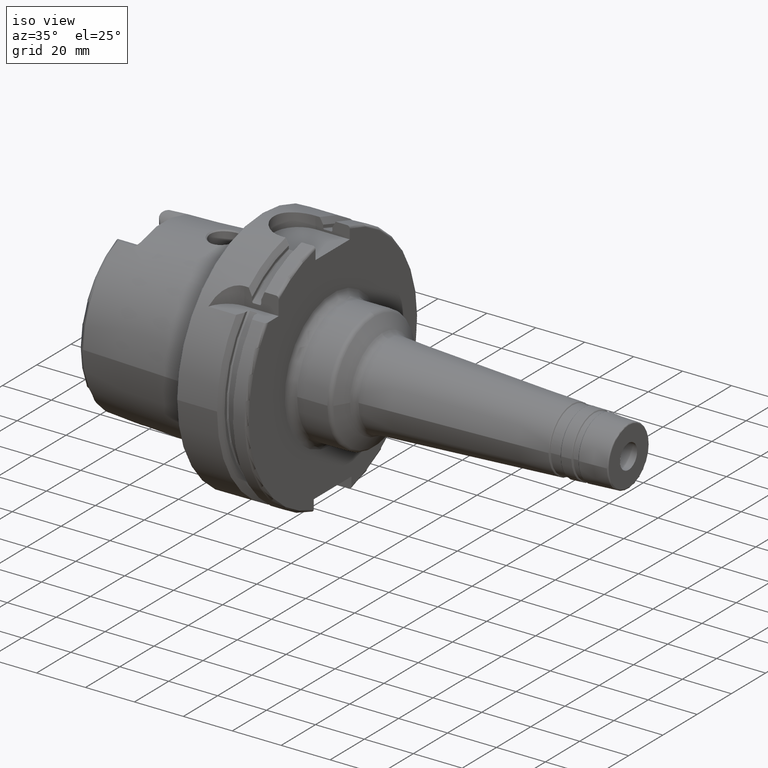
[diagram: clean part render]
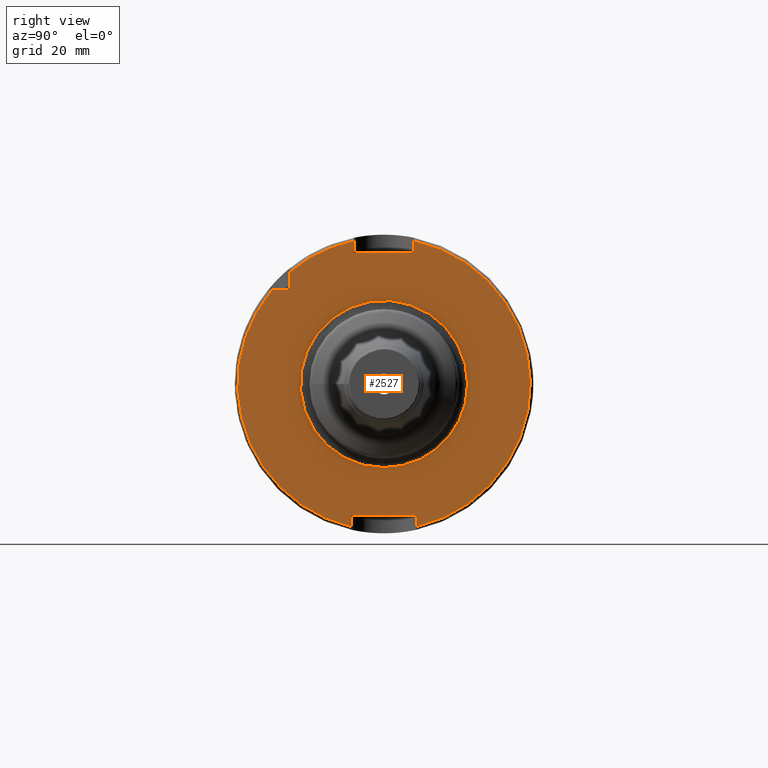
[diagram: tour spotlight — one face highlighted and labeled with its STEP entity id]
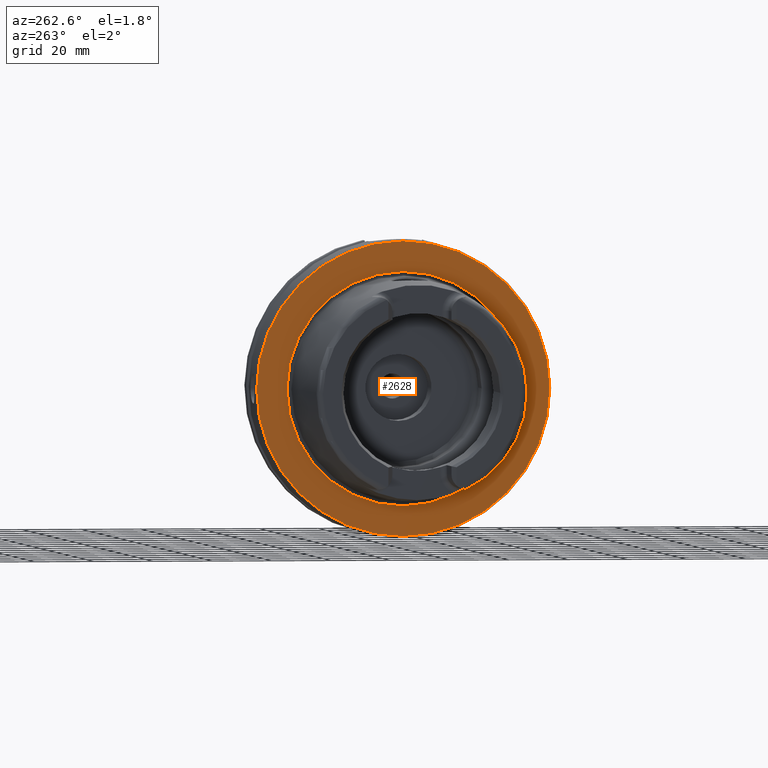
[diagram: tour spotlight — one face highlighted and labeled with its STEP entity id]
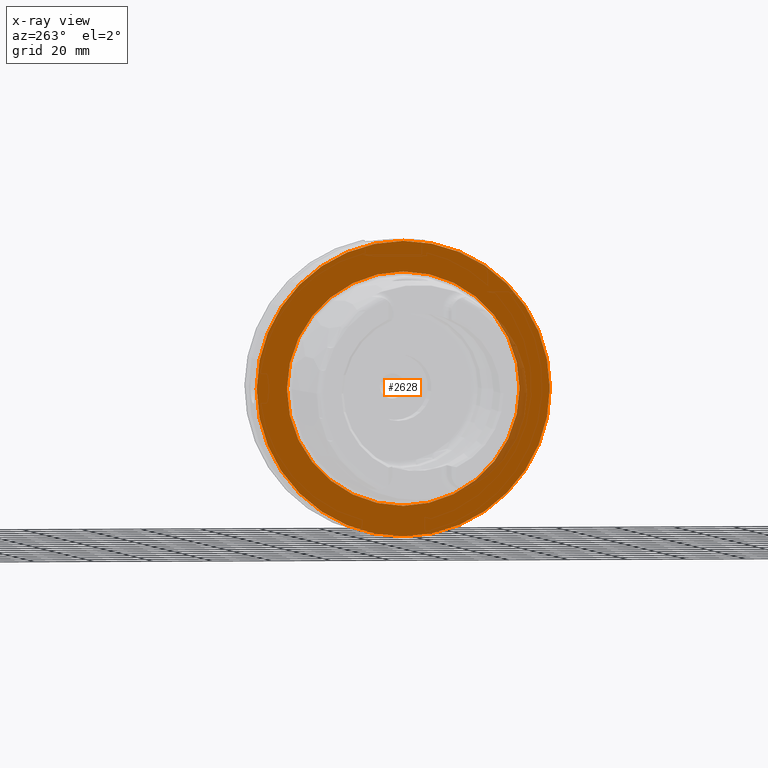
[diagram: x-ray of the same camera — body ghosted, this tour face saturated]
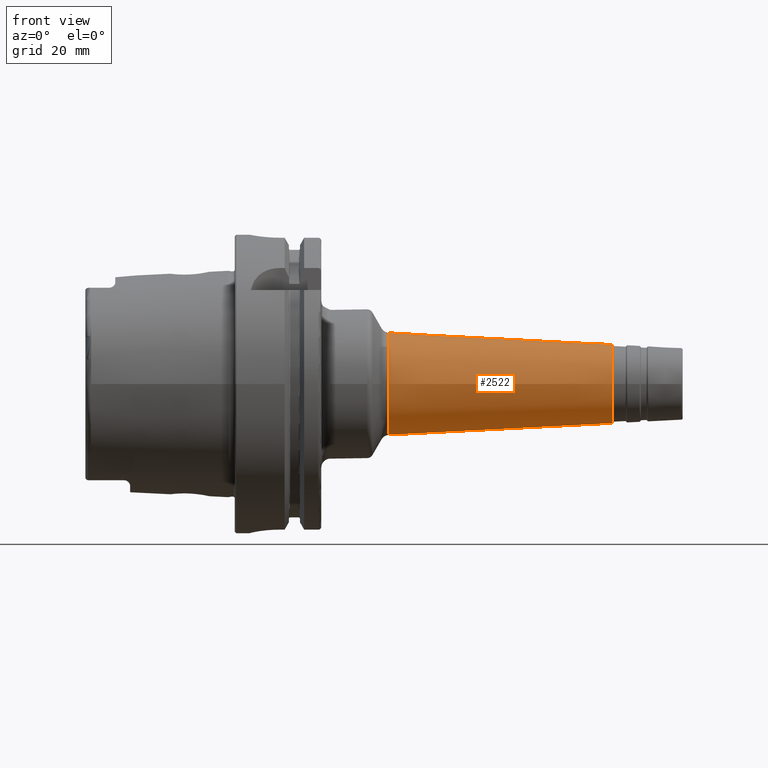
[diagram: tour spotlight — one face highlighted and labeled with its STEP entity id]
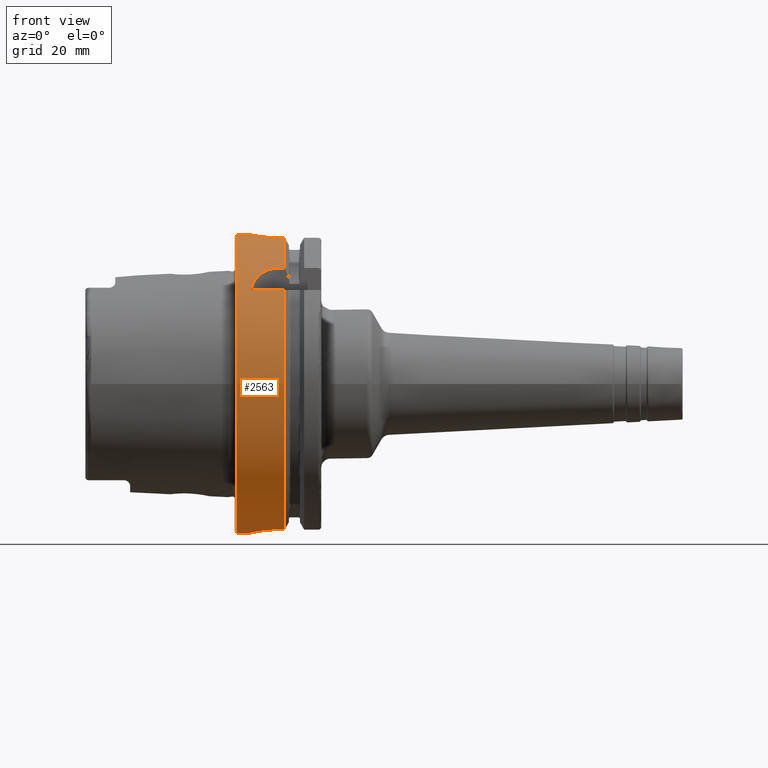
[diagram: tour spotlight — one face highlighted and labeled with its STEP entity id]
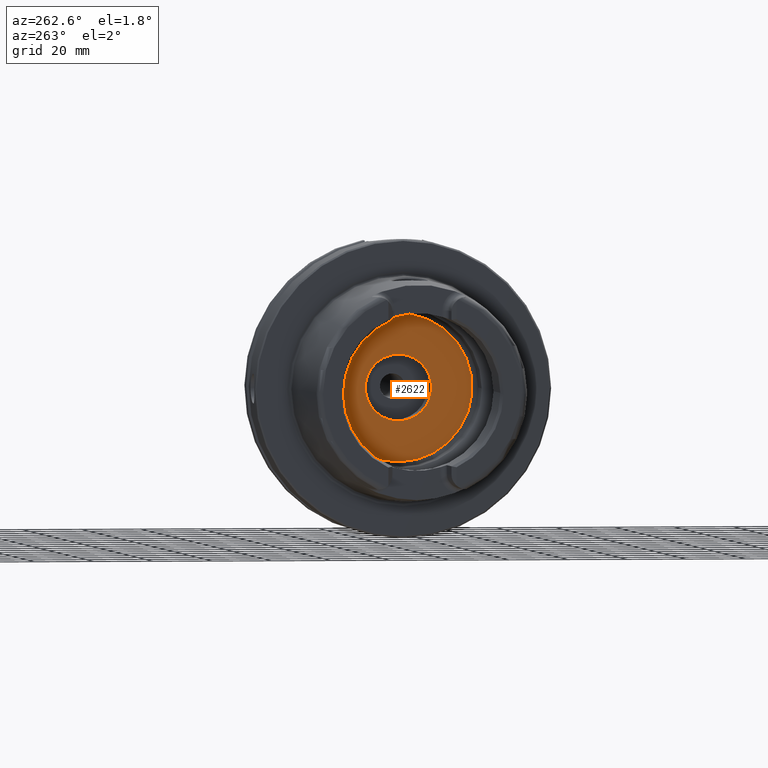
[diagram: tour spotlight — one face highlighted and labeled with its STEP entity id]
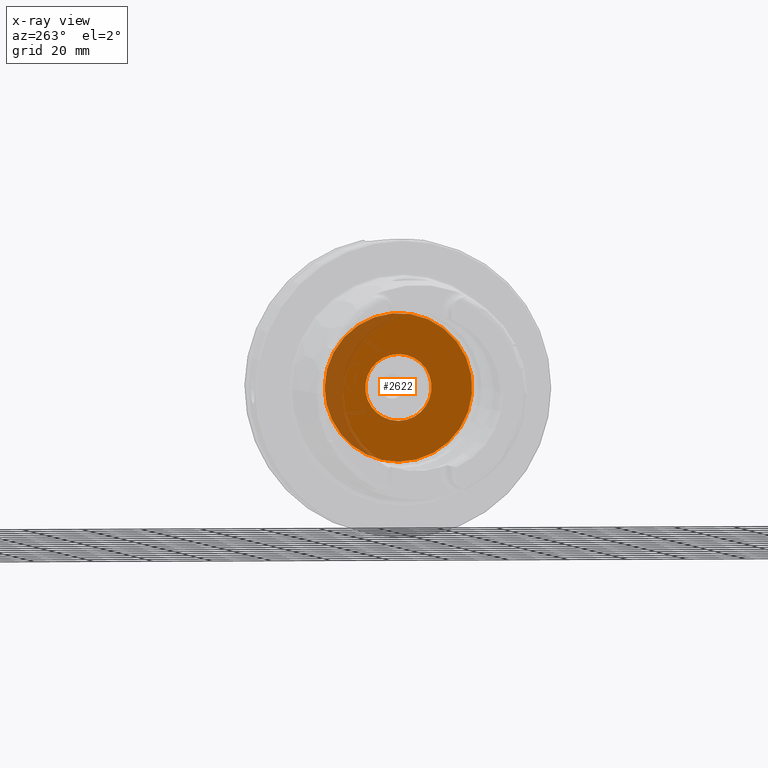
[diagram: x-ray of the same camera — body ghosted, this tour face saturated]
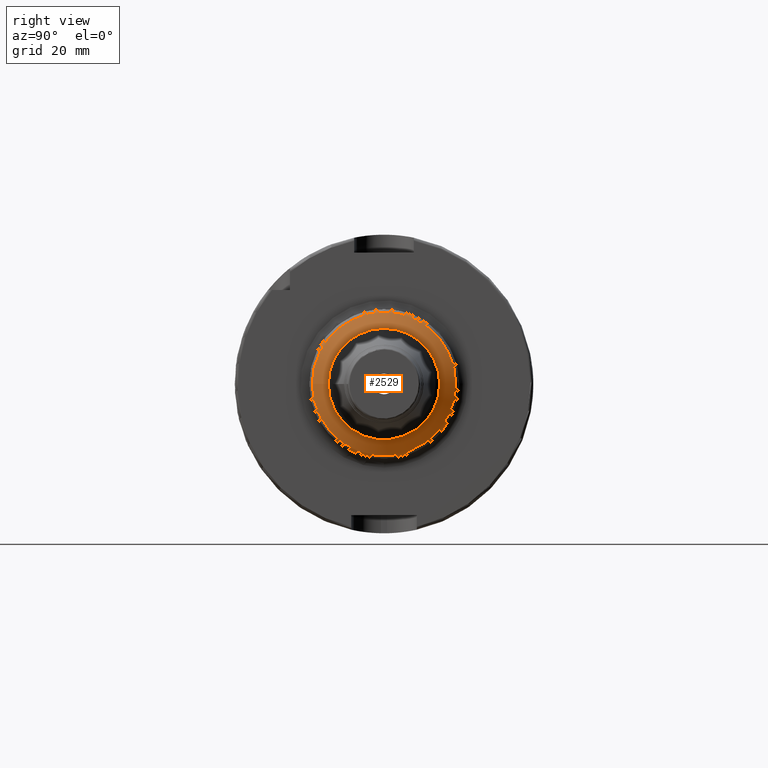
[diagram: tour spotlight — one face highlighted and labeled with its STEP entity id]
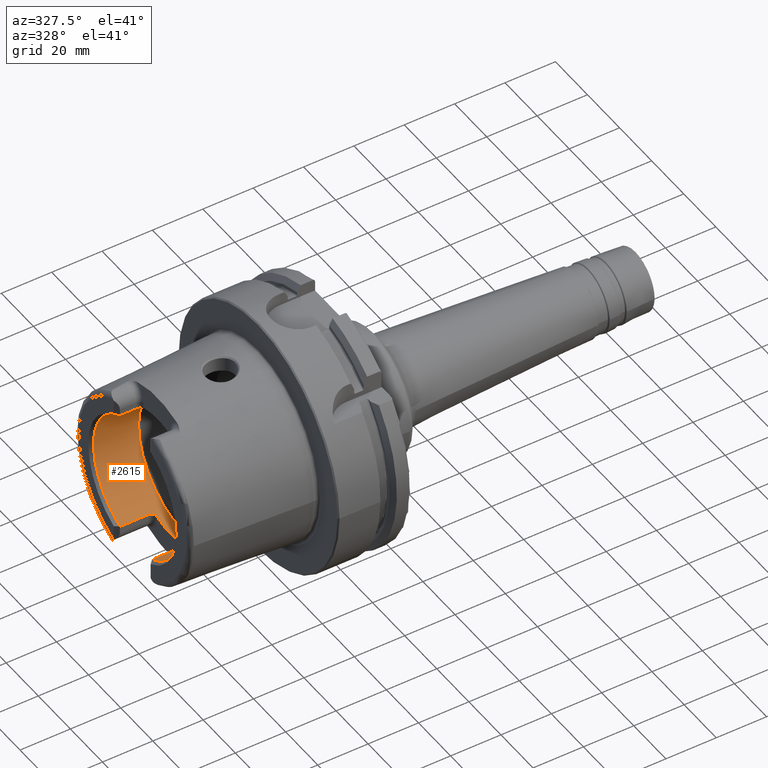
[diagram: tour spotlight — one face highlighted and labeled with its STEP entity id]
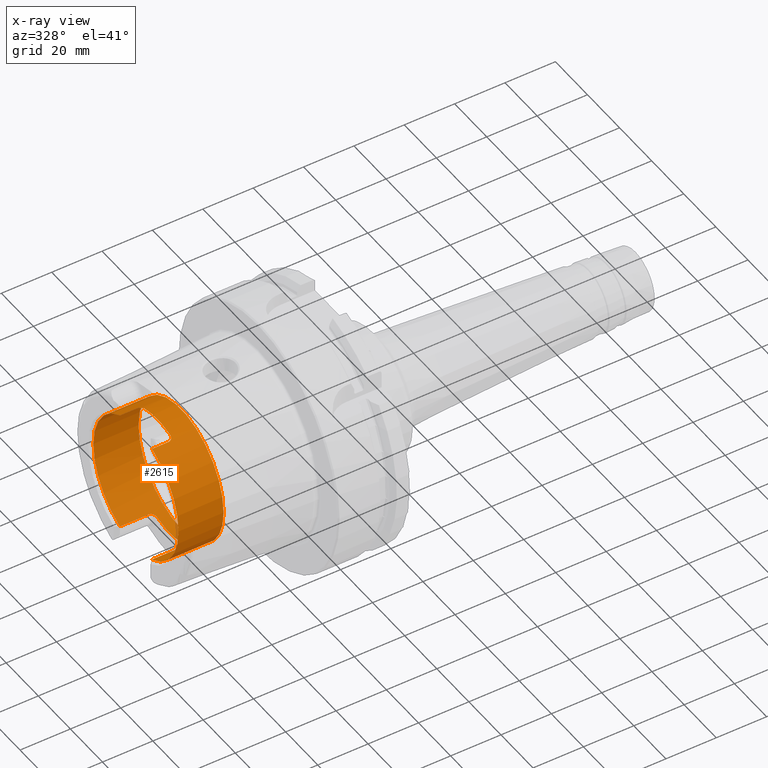
[diagram: x-ray of the same camera — body ghosted, this tour face saturated]
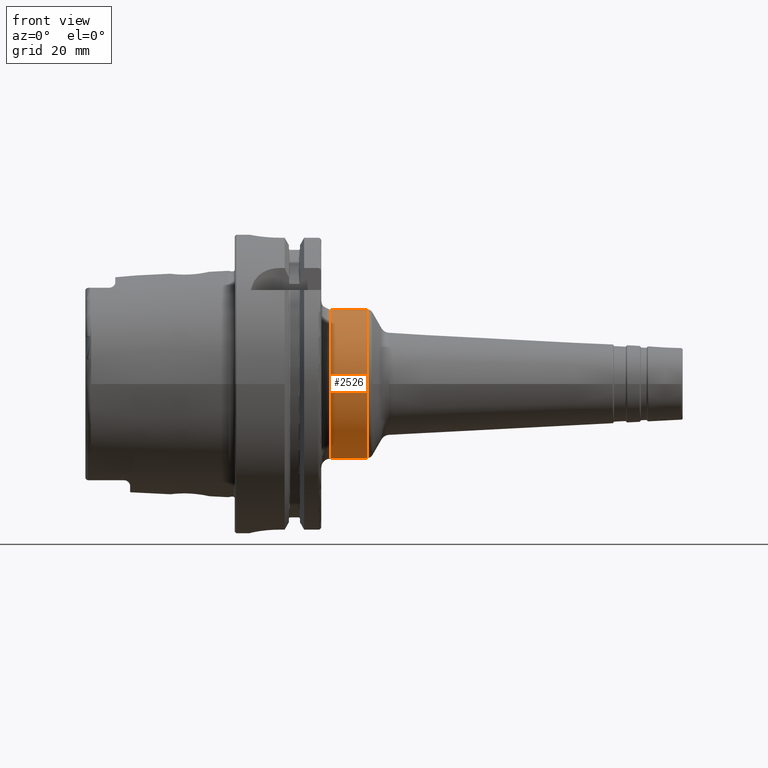
[diagram: tour spotlight — one face highlighted and labeled with its STEP entity id]
A machine part: a face-by-face anatomy tour. The part has 134 B-rep faces; the first image is the clean iso view, then the 8 largest visible faces are spotlighted one at a time (largest first), each with its STEP entity span.

Face 1 — right view, entity #2527. In plain terms, the highlighted planar face has unit normal (1, 0, 0).
Definition (entity closure, byte-faithful):
#129=FACE_BOUND('',#586,.T.);
#140=PLANE('',#2757);
#187=LINE('',#4051,#301);
#188=LINE('',#4055,#302);
#189=LINE('',#4057,#303);
#190=LINE('',#4059,#304);
#191=LINE('',#4063,#305);
#192=LINE('',#4065,#306);
#193=LINE('',#4067,#307);
#194=LINE('',#4070,#308);
#301=VECTOR('',#3234,10.);
#302=VECTOR('',#3237,10.);
#303=VECTOR('',#3238,10.);
#304=VECTOR('',#3239,10.);
#305=VECTOR('',#3242,10.);
#306=VECTOR('',#3243,10.);
#307=VECTOR('',#3244,10.);
#308=VECTOR('',#3247,10.);
#450=FACE_OUTER_BOUND('',#585,.T.);
#585=EDGE_LOOP('',(#1801,#1802,#1803,#1804,#1805,#1806,#1807,#1808,#1809,
#1810,#1811));
#586=EDGE_LOOP('',(#1812,#1813));
#777=CIRCLE('',#2749,28.);
#778=CIRCLE('',#2750,28.);
#784=CIRCLE('',#2758,49.);
#785=CIRCLE('',#2759,49.);
#786=CIRCLE('',#2760,49.);
#994=VERTEX_POINT('',#4032);
#995=VERTEX_POINT('',#4034);
#1000=VERTEX_POINT('',#4049);
#1001=VERTEX_POINT('',#4050);
#1002=VERTEX_POINT('',#4052);
#1003=VERTEX_POINT('',#4054);
#1004=VERTEX_POINT('',#4056);
#1005=VERTEX_POINT('',#4058);
#1006=VERTEX_POINT('',#4060);
#1007=VERTEX_POINT('',#4062);
#1008=VERTEX_POINT('',#4064);
#1009=VERTEX_POINT('',#4066);
#1010=VERTEX_POINT('',#4068);
#1301=EDGE_CURVE('',#994,#995,#777,.T.);
#1302=EDGE_CURVE('',#995,#994,#778,.T.);
#1309=EDGE_CURVE('',#1000,#1001,#187,.T.);
#1310=EDGE_CURVE('',#1001,#1002,#784,.T.);
#1311=EDGE_CURVE('',#1002,#1003,#188,.T.);
#1312=EDGE_CURVE('',#1003,#1004,#189,.T.);
#1313=EDGE_CURVE('',#1004,#1005,#190,.T.);
#1314=EDGE_CURVE('',#1005,#1006,#785,.T.);
#1315=EDGE_CURVE('',#1006,#1007,#191,.T.);
#1316=EDGE_CURVE('',#1007,#1008,#192,.T.);
#1317=EDGE_CURVE('',#1008,#1009,#193,.T.);
#1318=EDGE_CURVE('',#1009,#1010,#786,.T.);
#1319=EDGE_CURVE('',#1010,#1000,#194,.T.);
#1801=ORIENTED_EDGE('',*,*,#1309,.T.);
#1802=ORIENTED_EDGE('',*,*,#1310,.T.);
#1803=ORIENTED_EDGE('',*,*,#1311,.T.);
#1804=ORIENTED_EDGE('',*,*,#1312,.T.);
#1805=ORIENTED_EDGE('',*,*,#1313,.T.);
#1806=ORIENTED_EDGE('',*,*,#1314,.T.);
#1807=ORIENTED_EDGE('',*,*,#1315,.T.);
#1808=ORIENTED_EDGE('',*,*,#1316,.T.);
#1809=ORIENTED_EDGE('',*,*,#1317,.T.);
#1810=ORIENTED_EDGE('',*,*,#1318,.T.);
#1811=ORIENTED_EDGE('',*,*,#1319,.T.);
#1812=ORIENTED_EDGE('',*,*,#1302,.F.);
#1813=ORIENTED_EDGE('',*,*,#1301,.F.);
#2527=ADVANCED_FACE('',(#450,#129),#140,.T.);
#2749=AXIS2_PLACEMENT_3D('',#4035,#3215,#3216);
#2750=AXIS2_PLACEMENT_3D('',#4036,#3217,#3218);
#2757=AXIS2_PLACEMENT_3D('',#4048,#3232,#3233);
#2758=AXIS2_PLACEMENT_3D('',#4053,#3235,#3236);
#2759=AXIS2_PLACEMENT_3D('',#4061,#3240,#3241);
#2760=AXIS2_PLACEMENT_3D('',#4069,#3245,#3246);
#3215=DIRECTION('center_axis',(1.,0.,0.));
#3216=DIRECTION('ref_axis',(0.,-1.,-1.22464679914735E-16));
#3217=DIRECTION('center_axis',(1.,0.,0.));
#3218=DIRECTION('ref_axis',(0.,-1.,-1.22464679914735E-16));
#3232=DIRECTION('center_axis',(1.,0.,0.));
#3233=DIRECTION('ref_axis',(0.,0.,-1.));
#3234=DIRECTION('',(0.,-1.,0.));
#3235=DIRECTION('center_axis',(1.,0.,0.));
#3236=DIRECTION('ref_axis',(0.,0.,-1.));
#3237=DIRECTION('',(0.,0.,1.));
#3238=DIRECTION('',(0.,1.,0.));
#3239=DIRECTION('',(0.,0.,-1.));
#3240=DIRECTION('center_axis',(1.,0.,0.));
#3241=DIRECTION('ref_axis',(0.,0.,-1.));
#3242=DIRECTION('',(0.,0.,-1.));
#3243=DIRECTION('',(0.,-1.,0.));
#3244=DIRECTION('',(0.,0.,1.));
#3245=DIRECTION('center_axis',(1.,0.,0.));
#3246=DIRECTION('ref_axis',(0.,0.,-1.));
#3247=DIRECTION('',(0.,0.,-1.));
#4032=CARTESIAN_POINT('',(29.,-3.42901103761259E-15,-28.));
#4034=CARTESIAN_POINT('',(29.,28.,6.85802207522518E-15));
#4035=CARTESIAN_POINT('Origin',(29.,0.,0.));
#4036=CARTESIAN_POINT('Origin',(29.,0.,0.));
#4048=CARTESIAN_POINT('Origin',(29.,0.,0.));
#4049=CARTESIAN_POINT('',(29.,-31.5,31.5));
#4050=CARTESIAN_POINT('',(29.,-37.5333185316726,31.5));
#4051=CARTESIAN_POINT('',(29.,-18.25,31.5));
#4052=CARTESIAN_POINT('',(29.,-11.,-47.7493455452533));
#4053=CARTESIAN_POINT('Origin',(29.,0.,0.));
#4054=CARTESIAN_POINT('',(29.,-11.,-44.));
#4055=CARTESIAN_POINT('',(29.,-11.,-22.));
#4056=CARTESIAN_POINT('',(29.,11.,-44.));
#4057=CARTESIAN_POINT('',(29.,-5.55111512312578E-16,-44.));
#4058=CARTESIAN_POINT('',(29.,11.,-47.7493455452533));
#4059=CARTESIAN_POINT('',(29.,11.,-22.));
#4060=CARTESIAN_POINT('',(29.,10.,47.9687398208458));
#4061=CARTESIAN_POINT('Origin',(29.,0.,0.));
#4062=CARTESIAN_POINT('',(29.,10.,44.));
#4063=CARTESIAN_POINT('',(29.,10.,22.));
#4064=CARTESIAN_POINT('',(29.,-10.,44.));
#4065=CARTESIAN_POINT('',(29.,0.,44.));
#4066=CARTESIAN_POINT('',(29.,-10.,47.9687398208458));
#4067=CARTESIAN_POINT('',(29.,-10.,22.));
#4068=CARTESIAN_POINT('',(29.,-31.5,37.5333185316726));
#4069=CARTESIAN_POINT('Origin',(29.,0.,0.));
#4070=CARTESIAN_POINT('',(29.,-31.5,15.75));

Face 2 — auxiliary view, entity #2628. An x-ray twin of the same camera follows (body ghosted, this face saturated) — the face is partly hidden behind the body. In plain terms, the highlighted planar face has unit normal (-1, 0, 0).
Definition (entity closure, byte-faithful):
#138=FACE_BOUND('',#696,.T.);
#174=PLANE('',#3000);
#551=FACE_OUTER_BOUND('',#695,.T.);
#695=EDGE_LOOP('',(#2411,#2412));
#696=EDGE_LOOP('',(#2413,#2414));
#917=CIRCLE('',#2997,39.2747800249997);
#918=CIRCLE('',#2998,39.2747800249997);
#920=CIRCLE('',#3001,49.5);
#921=CIRCLE('',#3002,49.5);
#1214=VERTEX_POINT('',#5550);
#1215=VERTEX_POINT('',#5552);
#1216=VERTEX_POINT('',#5557);
#1217=VERTEX_POINT('',#5558);
#1619=EDGE_CURVE('',#1215,#1214,#917,.T.);
#1620=EDGE_CURVE('',#1214,#1215,#918,.T.);
#1622=EDGE_CURVE('',#1216,#1217,#920,.T.);
#1623=EDGE_CURVE('',#1217,#1216,#921,.T.);
#2411=ORIENTED_EDGE('',*,*,#1622,.F.);
#2412=ORIENTED_EDGE('',*,*,#1623,.F.);
#2413=ORIENTED_EDGE('',*,*,#1619,.T.);
#2414=ORIENTED_EDGE('',*,*,#1620,.T.);
#2628=ADVANCED_FACE('',(#551,#138),#174,.T.);
#2997=AXIS2_PLACEMENT_3D('',#5553,#3813,#3814);
#2998=AXIS2_PLACEMENT_3D('',#5554,#3815,#3816);
#3000=AXIS2_PLACEMENT_3D('',#5556,#3819,#3820);
#3001=AXIS2_PLACEMENT_3D('',#5559,#3821,#3822);
#3002=AXIS2_PLACEMENT_3D('',#5560,#3823,#3824);
#3813=DIRECTION('center_axis',(1.,0.,0.));
#3814=DIRECTION('ref_axis',(0.,0.,-1.));
#3815=DIRECTION('center_axis',(1.,0.,0.));
#3816=DIRECTION('ref_axis',(0.,0.,-1.));
#3819=DIRECTION('center_axis',(-1.,0.,0.));
#3820=DIRECTION('ref_axis',(0.,0.,1.));
#3821=DIRECTION('center_axis',(1.,0.,0.));
#3822=DIRECTION('ref_axis',(0.,0.,-1.));
#3823=DIRECTION('center_axis',(1.,0.,0.));
#3824=DIRECTION('ref_axis',(0.,0.,-1.));
#5550=CARTESIAN_POINT('',(-1.04950770296597E-15,-39.2747800249997,-4.80977336448322E-15));
#5552=CARTESIAN_POINT('',(0.,39.2747800249997,0.));
#5553=CARTESIAN_POINT('Origin',(0.,0.,0.));
#5554=CARTESIAN_POINT('Origin',(0.,0.,0.));
#5556=CARTESIAN_POINT('Origin',(0.,49.5,0.));
#5557=CARTESIAN_POINT('',(0.,49.5,0.));
#5558=CARTESIAN_POINT('',(1.28369537222284E-15,-49.5,-6.0620016557794E-15));
#5559=CARTESIAN_POINT('Origin',(0.,0.,0.));
#5560=CARTESIAN_POINT('Origin',(0.,0.,0.));

Face 3 — front view, entity #2522. In plain terms, the highlighted conical surface has half-angle 3 deg.
Definition (entity closure, byte-faithful):
#185=LINE('',#4011,#299);
#299=VECTOR('',#3188,15.2295517409819);
#413=CONICAL_SURFACE('',#2735,15.2295517409819,0.0523598775598298);
#445=FACE_OUTER_BOUND('',#579,.T.);
#579=EDGE_LOOP('',(#1767,#1768,#1769,#1770,#1771,#1772,#1773,#1774));
#764=CIRCLE('',#2732,13.2304120250298);
#765=CIRCLE('',#2733,13.2304120250298);
#766=CIRCLE('',#2734,13.2304120250298);
#767=CIRCLE('',#2736,17.1555296110897);
#768=CIRCLE('',#2737,17.1555296110897);
#769=CIRCLE('',#2738,17.1555296110897);
#982=VERTEX_POINT('',#4002);
#983=VERTEX_POINT('',#4004);
#984=VERTEX_POINT('',#4006);
#985=VERTEX_POINT('',#4010);
#986=VERTEX_POINT('',#4012);
#987=VERTEX_POINT('',#4014);
#1287=EDGE_CURVE('',#982,#983,#764,.T.);
#1288=EDGE_CURVE('',#983,#984,#765,.T.);
#1289=EDGE_CURVE('',#984,#982,#766,.T.);
#1290=EDGE_CURVE('',#983,#985,#185,.T.);
#1291=EDGE_CURVE('',#986,#985,#767,.T.);
#1292=EDGE_CURVE('',#987,#986,#768,.T.);
#1293=EDGE_CURVE('',#985,#987,#769,.T.);
#1767=ORIENTED_EDGE('',*,*,#1289,.F.);
#1768=ORIENTED_EDGE('',*,*,#1288,.F.);
#1769=ORIENTED_EDGE('',*,*,#1290,.T.);
#1770=ORIENTED_EDGE('',*,*,#1291,.F.);
#1771=ORIENTED_EDGE('',*,*,#1292,.F.);
#1772=ORIENTED_EDGE('',*,*,#1293,.F.);
#1773=ORIENTED_EDGE('',*,*,#1290,.F.);
#1774=ORIENTED_EDGE('',*,*,#1287,.F.);
#2522=ADVANCED_FACE('',(#445),#413,.T.);
#2732=AXIS2_PLACEMENT_3D('',#4005,#3180,#3181);
#2733=AXIS2_PLACEMENT_3D('',#4007,#3182,#3183);
#2734=AXIS2_PLACEMENT_3D('',#4008,#3184,#3185);
#2735=AXIS2_PLACEMENT_3D('',#4009,#3186,#3187);
#2736=AXIS2_PLACEMENT_3D('',#4013,#3189,#3190);
#2737=AXIS2_PLACEMENT_3D('',#4015,#3191,#3192);
#2738=AXIS2_PLACEMENT_3D('',#4016,#3193,#3194);
#3180=DIRECTION('center_axis',(1.,0.,0.));
#3181=DIRECTION('ref_axis',(0.,-1.,3.06161699786838E-17));
#3182=DIRECTION('center_axis',(1.,0.,0.));
#3183=DIRECTION('ref_axis',(0.,-1.,3.06161699786838E-17));
#3184=DIRECTION('center_axis',(1.,0.,0.));
#3185=DIRECTION('ref_axis',(0.,-1.,3.06161699786838E-17));
#3186=DIRECTION('center_axis',(-1.,0.,0.));
#3187=DIRECTION('ref_axis',(0.,1.,0.));
#3188=DIRECTION('',(-0.998629534754574,-0.0523359562429437,-6.4093061293237E-18));
#3189=DIRECTION('center_axis',(-1.,0.,0.));
#3190=DIRECTION('ref_axis',(0.,-1.,3.06161699786838E-17));
#3191=DIRECTION('center_axis',(-1.,0.,0.));
#3192=DIRECTION('ref_axis',(0.,-1.,3.06161699786838E-17));
#3193=DIRECTION('center_axis',(-1.,0.,0.));
#3194=DIRECTION('ref_axis',(0.,-1.,3.06161699786838E-17));
#4002=CARTESIAN_POINT('',(126.522339968181,-1.62025817378534E-15,13.2304120250298));
#4004=CARTESIAN_POINT('',(126.522339968181,-13.2304120250298,-1.62025817378535E-15));
#4005=CARTESIAN_POINT('Origin',(126.522339968181,0.,-2.02532271723168E-15));
#4006=CARTESIAN_POINT('',(126.522339968181,13.2304120250298,-8.10129086892673E-16));
#4007=CARTESIAN_POINT('Origin',(126.522339968181,0.,-2.02532271723168E-15));
#4008=CARTESIAN_POINT('Origin',(126.522339968181,0.,-2.02532271723168E-15));
#4009=CARTESIAN_POINT('Origin',(88.3764817902327,0.,0.));
#4010=CARTESIAN_POINT('',(51.6266347931668,-17.1555296110897,-2.10094644258986E-15));
#4011=CARTESIAN_POINT('',(88.3764817902327,-15.2295517409819,-1.86508217920425E-15));
#4012=CARTESIAN_POINT('',(51.6266347931668,17.1555296110897,-5.25236610647466E-15));
#4013=CARTESIAN_POINT('Origin',(51.6266347931668,0.,-2.62618305323733E-15));
#4014=CARTESIAN_POINT('',(51.6266347931668,-2.10094644258986E-15,17.1555296110897));
#4015=CARTESIAN_POINT('Origin',(51.6266347931668,0.,-2.62618305323733E-15));
#4016=CARTESIAN_POINT('Origin',(51.6266347931668,0.,-2.62618305323733E-15));

Face 4 — front view, entity #2563. In plain terms, the highlighted cylindrical surface (bore or boss wall) has radius 50 mm, axis along (1, 0, 0).
Definition (entity closure, byte-faithful):
#56=B_SPLINE_CURVE_WITH_KNOTS('',3,(#4887,#4888,#4889,#4890,#4891,#4892,
#4893,#4894,#4895,#4896,#4897,#4898,#4899,#4900,#4901,#4902,#4903,#4904,
#4905,#4906,#4907,#4908,#4909,#4910,#4911,#4912),.UNSPECIFIED.,.F.,.F.,
(4,2,2,2,2,2,2,2,2,2,2,2,4),(0.,0.188478911015149,0.376957822030298,0.565436091508923,
0.753914360987547,0.942392630466172,1.1308708999448,1.31934981095995,1.50782872197509,
1.69630763299024,1.88478654400539,2.07326481348402,2.26174308296264),
 .UNSPECIFIED.);
#57=B_SPLINE_CURVE_WITH_KNOTS('',3,(#4913,#4914,#4915,#4916,#4917,#4918,
#4919,#4920,#4921,#4922),.UNSPECIFIED.,.F.,.F.,(4,2,2,2,4),(2.26174308296264,
2.45022135244127,2.63869962191989,2.82717853293504,3.01565744395019),
 .UNSPECIFIED.);
#58=B_SPLINE_CURVE_WITH_KNOTS('',3,(#4926,#4927,#4928,#4929,#4930,#4931,
#4932,#4933,#4934,#4935,#4936,#4937),.UNSPECIFIED.,.F.,.F.,(4,2,2,2,2,4),
(1.13213255574021,1.59216410027009,1.87572541272146,2.15928672517283,2.38471683342296,
2.61014694167308),.UNSPECIFIED.);
#65=B_SPLINE_CURVE_WITH_KNOTS('',3,(#5050,#5051,#5052,#5053,#5054,#5055,
#5056,#5057,#5058,#5059,#5060,#5061,#5062,#5063,#5064,#5065,#5066,#5067),
 .UNSPECIFIED.,.F.,.F.,(4,2,2,2,2,2,2,2,4),(0.,0.377795255890194,0.755590511780389,
1.13336459804459,1.51113868430879,1.88891277057299,2.26668685683718,2.64448211272738,
3.02227736861757),.UNSPECIFIED.);
#66=B_SPLINE_CURVE_WITH_KNOTS('',3,(#5075,#5076,#5077,#5078,#5079,#5080,
#5081,#5082,#5083,#5084),.UNSPECIFIED.,.F.,.F.,(4,2,2,2,4),(0.,0.377863193874929,
0.755726387749858,1.13417752669663,1.51262866564341),.UNSPECIFIED.);
#67=B_SPLINE_CURVE_WITH_KNOTS('',3,(#5088,#5089,#5090,#5091,#5092,#5093,
#5094,#5095,#5096,#5097),.UNSPECIFIED.,.F.,.F.,(4,2,2,2,4),(1.50996806152532,
1.8884192004721,2.26687033941887,2.6447335332938,3.02259672716873),
 .UNSPECIFIED.);
#106=CYLINDRICAL_SURFACE('',#2859,50.);
#134=FACE_BOUND('',#627,.T.);
#229=LINE('',#4943,#343);
#235=LINE('',#4995,#349);
#240=LINE('',#5048,#354);
#241=LINE('',#5069,#355);
#242=LINE('',#5073,#356);
#243=LINE('',#5099,#357);
#244=LINE('',#5103,#358);
#343=VECTOR('',#3476,10.);
#349=VECTOR('',#3484,10.);
#354=VECTOR('',#3493,10.);
#355=VECTOR('',#3494,10.);
#356=VECTOR('',#3497,10.);
#357=VECTOR('',#3500,10.);
#358=VECTOR('',#3503,50.);
#486=FACE_OUTER_BOUND('',#626,.T.);
#626=EDGE_LOOP('',(#2052,#2053,#2054,#2055,#2056,#2057,#2058,#2059,#2060,
#2061,#2062,#2063,#2064,#2065,#2066,#2067,#2068,#2069,#2070));
#627=EDGE_LOOP('',(#2071,#2072));
#844=CIRCLE('',#2860,50.);
#845=CIRCLE('',#2861,50.);
#846=CIRCLE('',#2862,50.);
#847=CIRCLE('',#2863,50.);
#848=CIRCLE('',#2864,50.);
#849=CIRCLE('',#2865,50.);
#850=CIRCLE('',#2866,50.);
#1104=VERTEX_POINT('',#4884);
#1105=VERTEX_POINT('',#4886);
#1106=VERTEX_POINT('',#4924);
#1107=VERTEX_POINT('',#4925);
#1109=VERTEX_POINT('',#4942);
#1118=VERTEX_POINT('',#4994);
#1127=VERTEX_POINT('',#5045);
#1128=VERTEX_POINT('',#5047);
#1129=VERTEX_POINT('',#5049);
#1130=VERTEX_POINT('',#5068);
#1131=VERTEX_POINT('',#5070);
#1132=VERTEX_POINT('',#5072);
#1133=VERTEX_POINT('',#5074);
#1134=VERTEX_POINT('',#5085);
#1135=VERTEX_POINT('',#5087);
#1136=VERTEX_POINT('',#5098);
#1137=VERTEX_POINT('',#5100);
#1138=VERTEX_POINT('',#5102);
#1139=VERTEX_POINT('',#5104);
#1444=EDGE_CURVE('',#1105,#1104,#56,.T.);
#1445=EDGE_CURVE('',#1104,#1105,#57,.T.);
#1446=EDGE_CURVE('',#1106,#1107,#58,.T.);
#1449=EDGE_CURVE('',#1107,#1109,#229,.T.);
#1460=EDGE_CURVE('',#1118,#1106,#235,.T.);
#1470=EDGE_CURVE('',#1127,#1109,#844,.T.);
#1471=EDGE_CURVE('',#1127,#1128,#240,.T.);
#1472=EDGE_CURVE('',#1128,#1129,#65,.T.);
#1473=EDGE_CURVE('',#1129,#1130,#241,.T.);
#1474=EDGE_CURVE('',#1131,#1130,#845,.T.);
#1475=EDGE_CURVE('',#1131,#1132,#242,.T.);
#1476=EDGE_CURVE('',#1132,#1133,#66,.T.);
#1477=EDGE_CURVE('',#1133,#1134,#846,.T.);
#1478=EDGE_CURVE('',#1134,#1135,#67,.T.);
#1479=EDGE_CURVE('',#1135,#1136,#243,.T.);
#1480=EDGE_CURVE('',#1137,#1136,#847,.T.);
#1481=EDGE_CURVE('',#1137,#1138,#244,.T.);
#1482=EDGE_CURVE('',#1138,#1139,#848,.T.);
#1483=EDGE_CURVE('',#1139,#1138,#849,.T.);
#1484=EDGE_CURVE('',#1118,#1137,#850,.T.);
#2052=ORIENTED_EDGE('',*,*,#1460,.T.);
#2053=ORIENTED_EDGE('',*,*,#1446,.T.);
#2054=ORIENTED_EDGE('',*,*,#1449,.T.);
#2055=ORIENTED_EDGE('',*,*,#1470,.F.);
#2056=ORIENTED_EDGE('',*,*,#1471,.T.);
#2057=ORIENTED_EDGE('',*,*,#1472,.T.);
#2058=ORIENTED_EDGE('',*,*,#1473,.T.);
#2059=ORIENTED_EDGE('',*,*,#1474,.F.);
#2060=ORIENTED_EDGE('',*,*,#1475,.T.);
#2061=ORIENTED_EDGE('',*,*,#1476,.T.);
#2062=ORIENTED_EDGE('',*,*,#1477,.T.);
#2063=ORIENTED_EDGE('',*,*,#1478,.T.);
#2064=ORIENTED_EDGE('',*,*,#1479,.T.);
#2065=ORIENTED_EDGE('',*,*,#1480,.F.);
#2066=ORIENTED_EDGE('',*,*,#1481,.T.);
#2067=ORIENTED_EDGE('',*,*,#1482,.T.);
#2068=ORIENTED_EDGE('',*,*,#1483,.T.);
#2069=ORIENTED_EDGE('',*,*,#1481,.F.);
#2070=ORIENTED_EDGE('',*,*,#1484,.F.);
#2071=ORIENTED_EDGE('',*,*,#1444,.T.);
#2072=ORIENTED_EDGE('',*,*,#1445,.T.);
#2563=ADVANCED_FACE('',(#486,#134),#106,.T.);
#2859=AXIS2_PLACEMENT_3D('',#5044,#3489,#3490);
#2860=AXIS2_PLACEMENT_3D('',#5046,#3491,#3492);
#2861=AXIS2_PLACEMENT_3D('',#5071,#3495,#3496);
#2862=AXIS2_PLACEMENT_3D('',#5086,#3498,#3499);
#2863=AXIS2_PLACEMENT_3D('',#5101,#3501,#3502);
#2864=AXIS2_PLACEMENT_3D('',#5105,#3504,#3505);
#2865=AXIS2_PLACEMENT_3D('',#5106,#3506,#3507);
#2866=AXIS2_PLACEMENT_3D('',#5107,#3508,#3509);
#3476=DIRECTION('',(1.,0.,0.));
#3484=DIRECTION('',(-1.,0.,0.));
#3489=DIRECTION('center_axis',(1.,0.,0.));
#3490=DIRECTION('ref_axis',(0.,1.,0.));
#3491=DIRECTION('center_axis',(1.,0.,0.));
#3492=DIRECTION('ref_axis',(0.,0.,-1.));
#3493=DIRECTION('',(-1.,0.,0.));
#3494=DIRECTION('',(1.,0.,0.));
#3495=DIRECTION('center_axis',(1.,0.,0.));
#3496=DIRECTION('ref_axis',(0.,0.,-1.));
#3497=DIRECTION('',(-1.,0.,0.));
#3498=DIRECTION('center_axis',(-1.,0.,0.));
#3499=DIRECTION('ref_axis',(0.,1.,0.));
#3500=DIRECTION('',(1.,0.,0.));
#3501=DIRECTION('center_axis',(1.,0.,0.));
#3502=DIRECTION('ref_axis',(0.,0.,-1.));
#3503=DIRECTION('',(-1.,0.,0.));
#3504=DIRECTION('center_axis',(1.,0.,0.));
#3505=DIRECTION('ref_axis',(0.,0.,-1.));
#3506=DIRECTION('center_axis',(1.,0.,0.));
#3507=DIRECTION('ref_axis',(0.,0.,-1.));
#3508=DIRECTION('center_axis',(1.,0.,0.));
#3509=DIRECTION('ref_axis',(0.,0.,-1.));
#4884=CARTESIAN_POINT('',(12.,50.,-6.12323399573677E-16));
#4886=CARTESIAN_POINT('',(6.99999999999999,49.749371855331,5.));
#4887=CARTESIAN_POINT('Ctrl Pts',(6.99999999999999,49.749371855331,5.));
#4888=CARTESIAN_POINT('Ctrl Pts',(6.37173696328283,49.749371855331,5.));
#4889=CARTESIAN_POINT('Ctrl Pts',(5.70188570880885,49.7624993987098,4.87435544587055));
#4890=CARTESIAN_POINT('Ctrl Pts',(4.4701142477173,49.8098541153698,4.36395693611591));
#4891=CARTESIAN_POINT('Ctrl Pts',(3.90815809537484,49.8433908660961,3.97922590724033));
#4892=CARTESIAN_POINT('Ctrl Pts',(3.02077560297968,49.9062957431473,3.09184341484517));
#4893=CARTESIAN_POINT('Ctrl Pts',(2.63604339567929,49.9397591808605,2.52988660036719));
#4894=CARTESIAN_POINT('Ctrl Pts',(2.12564400622109,49.9869460568296,1.29811292154946));
#4895=CARTESIAN_POINT('Ctrl Pts',(1.99999999999999,50.,0.628260898262081));
#4896=CARTESIAN_POINT('Ctrl Pts',(1.99999999999999,50.,-0.628260898262082));
#4897=CARTESIAN_POINT('Ctrl Pts',(2.12564400622109,49.9869460568296,-1.29811292154946));
#4898=CARTESIAN_POINT('Ctrl Pts',(2.63604339567929,49.9397591808605,-2.52988660036719));
#4899=CARTESIAN_POINT('Ctrl Pts',(3.02077560297968,49.9062957431473,-3.09184341484517));
#4900=CARTESIAN_POINT('Ctrl Pts',(3.90815809537484,49.8433908660961,-3.97922590724033));
#4901=CARTESIAN_POINT('Ctrl Pts',(4.4701142477173,49.8098541153698,-4.36395693611591));
#4902=CARTESIAN_POINT('Ctrl Pts',(5.70188570880885,49.7624993987098,-4.87435544587055));
#4903=CARTESIAN_POINT('Ctrl Pts',(6.37173696328283,49.749371855331,-5.));
#4904=CARTESIAN_POINT('Ctrl Pts',(7.62826303671716,49.749371855331,-5.));
#4905=CARTESIAN_POINT('Ctrl Pts',(8.29811429119113,49.7624993987098,-4.87435544587055));
#4906=CARTESIAN_POINT('Ctrl Pts',(9.52988575228269,49.8098541153698,-4.36395693611591));
#4907=CARTESIAN_POINT('Ctrl Pts',(10.0918419046251,49.8433908660961,-3.97922590724033));
#4908=CARTESIAN_POINT('Ctrl Pts',(10.9792243970203,49.9062957431473,-3.09184341484517));
#4909=CARTESIAN_POINT('Ctrl Pts',(11.3639566043207,49.9397591808605,-2.52988660036719));
#4910=CARTESIAN_POINT('Ctrl Pts',(11.8743559937789,49.9869460568296,-1.29811292154947));
#4911=CARTESIAN_POINT('Ctrl Pts',(12.,50.,-0.628260898262083));
#4912=CARTESIAN_POINT('Ctrl Pts',(12.,50.,-5.55111512312578E-16));
#4913=CARTESIAN_POINT('Ctrl Pts',(12.,50.,-5.55111512312578E-16));
#4914=CARTESIAN_POINT('Ctrl Pts',(12.,50.,0.628260898262082));
#4915=CARTESIAN_POINT('Ctrl Pts',(11.8743559937789,49.9869460568296,1.29811292154946));
#4916=CARTESIAN_POINT('Ctrl Pts',(11.3639566043207,49.9397591808605,2.52988660036719));
#4917=CARTESIAN_POINT('Ctrl Pts',(10.9792243970203,49.9062957431473,3.09184341484517));
#4918=CARTESIAN_POINT('Ctrl Pts',(10.0918419046251,49.8433908660961,3.97922590724033));
#4919=CARTESIAN_POINT('Ctrl Pts',(9.52988575228269,49.8098541153698,4.36395693611591));
#4920=CARTESIAN_POINT('Ctrl Pts',(8.29811429119113,49.7624993987098,4.87435544587055));
#4921=CARTESIAN_POINT('Ctrl Pts',(7.62826303671716,49.749371855331,5.));
#4922=CARTESIAN_POINT('Ctrl Pts',(6.99999999999999,49.749371855331,5.));
#4924=CARTESIAN_POINT('',(5.36310214079494,-38.8297566307078,31.5));
#4925=CARTESIAN_POINT('',(15.,-31.5,38.8297566307078));
#4926=CARTESIAN_POINT('Ctrl Pts',(5.36310214079494,-38.8297566307078,31.5));
#4927=CARTESIAN_POINT('Ctrl Pts',(5.63795050776221,-37.8378299510303,32.722738779917));
#4928=CARTESIAN_POINT('Ctrl Pts',(6.08245260240086,-36.8264130955983,33.8486741193789));
#4929=CARTESIAN_POINT('Ctrl Pts',(7.14730321206235,-35.2667182945212,35.4540138707062));
#4930=CARTESIAN_POINT('Ctrl Pts',(7.68113760815893,-34.6306580359392,36.0741351437033));
#4931=CARTESIAN_POINT('Ctrl Pts',(8.97436758466638,-33.4722127660808,37.1515365058173));
#4932=CARTESIAN_POINT('Ctrl Pts',(9.73574998094174,-32.9521170857844,37.6088911783762));
#4933=CARTESIAN_POINT('Ctrl Pts',(11.1521999725134,-32.2432973482077,38.2170233500259));
#4934=CARTESIAN_POINT('Ctrl Pts',(11.8888981504148,-31.9629772872452,38.4503075998006));
#4935=CARTESIAN_POINT('Ctrl Pts',(13.4369856471743,-31.5908755949743,38.7566077888176));
#4936=CARTESIAN_POINT('Ctrl Pts',(14.2485663058329,-31.5,38.8297566307078));
#4937=CARTESIAN_POINT('Ctrl Pts',(15.,-31.5,38.8297566307078));
#4942=CARTESIAN_POINT('',(16.7379709790786,-31.5,38.8297566307078));
#4943=CARTESIAN_POINT('',(8.61898548953931,-31.5,38.8297566307078));
#4994=CARTESIAN_POINT('',(16.7379709790786,-38.8297566307078,31.5));
#4995=CARTESIAN_POINT('',(8.61898548953931,-38.8297566307078,31.5));
#5044=CARTESIAN_POINT('Origin',(8.61898548953931,0.,0.));
#5045=CARTESIAN_POINT('',(16.7379709790786,-10.,48.9897948556636));
#5046=CARTESIAN_POINT('Origin',(16.7379709790786,0.,0.));
#5047=CARTESIAN_POINT('',(15.,-10.,48.9897948556636));
#5048=CARTESIAN_POINT('',(8.61898548953931,-10.,48.9897948556636));
#5049=CARTESIAN_POINT('',(15.,10.,48.9897948556636));
#5050=CARTESIAN_POINT('Ctrl Pts',(15.,-10.,48.9897948556636));
#5051=CARTESIAN_POINT('Ctrl Pts',(13.740682480366,-10.,48.9897948556636));
#5052=CARTESIAN_POINT('Ctrl Pts',(12.3998222283811,-9.74762796248614,49.0433876618447));
#5053=CARTESIAN_POINT('Ctrl Pts',(9.93707994969945,-8.72605417648382,49.2354150792771));
#5054=CARTESIAN_POINT('Ctrl Pts',(8.81489539818993,-7.95703102192089,49.3709085101933));
#5055=CARTESIAN_POINT('Ctrl Pts',(7.04301862271998,-6.18515424645094,49.6240337638318));
#5056=CARTESIAN_POINT('Ctrl Pts',(6.27395658455242,-5.06294861197626,49.7583347151863));
#5057=CARTESIAN_POINT('Ctrl Pts',(5.25235457764165,-2.60013306081865,49.9476188647081));
#5058=CARTESIAN_POINT('Ctrl Pts',(4.99999999999999,-1.259246954214,50.));
#5059=CARTESIAN_POINT('Ctrl Pts',(4.99999999999999,1.259246954214,50.));
#5060=CARTESIAN_POINT('Ctrl Pts',(5.25235457764165,2.60013306081865,49.9476188647081));
#5061=CARTESIAN_POINT('Ctrl Pts',(6.27395658455242,5.06294861197626,49.7583347151863));
#5062=CARTESIAN_POINT('Ctrl Pts',(7.04301862271998,6.18515424645094,49.6240337638318));
#5063=CARTESIAN_POINT('Ctrl Pts',(8.81489539818993,7.95703102192089,49.3709085101933));
#5064=CARTESIAN_POINT('Ctrl Pts',(9.93707994969945,8.72605417648382,49.2354150792771));
#5065=CARTESIAN_POINT('Ctrl Pts',(12.3998222283811,9.74762796248614,49.0433876618447));
#5066=CARTESIAN_POINT('Ctrl Pts',(13.740682480366,10.,48.9897948556636));
#5067=CARTESIAN_POINT('Ctrl Pts',(15.,10.,48.9897948556636));
#5068=CARTESIAN_POINT('',(16.7379709790786,10.,48.9897948556636));
#5069=CARTESIAN_POINT('',(8.61898548953931,10.,48.9897948556636));
#5070=CARTESIAN_POINT('',(16.7379709790786,11.,-48.7749935930288));
#5071=CARTESIAN_POINT('Origin',(16.7379709790786,0.,0.));
#5072=CARTESIAN_POINT('',(15.,11.,-48.7749935930288));
#5073=CARTESIAN_POINT('',(8.61898548953931,11.,-48.7749935930288));
#5074=CARTESIAN_POINT('',(4.99999999999999,0.999999999999997,-49.9899989998));
#5075=CARTESIAN_POINT('Ctrl Pts',(15.,11.,-48.7749935930288));
#5076=CARTESIAN_POINT('Ctrl Pts',(13.7404560204169,11.,-48.7749935930288));
#5077=CARTESIAN_POINT('Ctrl Pts',(12.3998213084084,10.7475295248871,-48.8340306344483));
#5078=CARTESIAN_POINT('Ctrl Pts',(9.9383361278342,9.72667325975831,-49.0475663096823));
#5079=CARTESIAN_POINT('Ctrl Pts',(8.81713821454868,8.95850056252305,-49.1990678796225));
#5080=CARTESIAN_POINT('Ctrl Pts',(7.04551978193545,7.18842719108522,-49.4887060645896));
#5081=CARTESIAN_POINT('Ctrl Pts',(6.27594389465425,6.06650925178,-49.6460359942126));
#5082=CARTESIAN_POINT('Ctrl Pts',(5.25307325920197,3.60309260864685,-49.8853600567865));
#5083=CARTESIAN_POINT('Ctrl Pts',(4.99999999999999,2.26125147049483,-49.9647689238702));
#5084=CARTESIAN_POINT('Ctrl Pts',(4.99999999999999,1.,-49.9899989998));
#5085=CARTESIAN_POINT('',(4.99999999999999,-1.00000000000001,-49.9899989998));
#5086=CARTESIAN_POINT('Origin',(4.99999999999999,0.,0.));
#5087=CARTESIAN_POINT('',(15.,-11.,-48.7749935930288));
#5088=CARTESIAN_POINT('Ctrl Pts',(4.99999999999999,-1.,-49.9899989998));
#5089=CARTESIAN_POINT('Ctrl Pts',(4.99999999999999,-2.26125147049483,-49.9647689238702));
#5090=CARTESIAN_POINT('Ctrl Pts',(5.25307325920197,-3.60309260864686,-49.8853600567865));
#5091=CARTESIAN_POINT('Ctrl Pts',(6.27594389465425,-6.06650925178001,-49.6460359942126));
#5092=CARTESIAN_POINT('Ctrl Pts',(7.04551978193545,-7.18842719108522,-49.4887060645896));
#5093=CARTESIAN_POINT('Ctrl Pts',(8.81713821454868,-8.95850056252306,-49.1990678796225));
#5094=CARTESIAN_POINT('Ctrl Pts',(9.9383361278342,-9.72667325975831,-49.0475663096823));
#5095=CARTESIAN_POINT('Ctrl Pts',(12.3998213084084,-10.7475295248871,-48.8340306344483));
#5096=CARTESIAN_POINT('Ctrl Pts',(13.7404560204169,-11.,-48.7749935930288));
#5097=CARTESIAN_POINT('Ctrl Pts',(15.,-11.,-48.7749935930288));
#5098=CARTESIAN_POINT('',(16.7379709790786,-11.,-48.7749935930288));
#5099=CARTESIAN_POINT('',(8.61898548953931,-11.,-48.7749935930288));
#5100=CARTESIAN_POINT('',(16.7379709790786,-50.,-6.12323399573677E-15));
#5101=CARTESIAN_POINT('Origin',(16.7379709790786,0.,0.));
#5102=CARTESIAN_POINT('',(0.5,-50.,-6.12323399573677E-15));
#5103=CARTESIAN_POINT('',(8.61898548953931,-50.,-6.12323399573677E-15));
#5104=CARTESIAN_POINT('',(0.5,50.,0.));
#5105=CARTESIAN_POINT('Origin',(0.5,0.,0.));
#5106=CARTESIAN_POINT('Origin',(0.5,0.,0.));
#5107=CARTESIAN_POINT('Origin',(16.7379709790786,0.,0.));

Face 5 — auxiliary view, entity #2622. An x-ray twin of the same camera follows (body ghosted, this face saturated) — the face is partly hidden behind the body. In plain terms, the highlighted planar face has unit normal (1, 0, 0).
Definition (entity closure, byte-faithful):
#137=FACE_BOUND('',#689,.T.);
#173=PLANE('',#2979);
#545=FACE_OUTER_BOUND('',#688,.T.);
#688=EDGE_LOOP('',(#2369,#2370));
#689=EDGE_LOOP('',(#2371,#2372));
#894=CIRCLE('',#2964,11.188101);
#895=CIRCLE('',#2965,11.188101);
#905=CIRCLE('',#2980,24.9);
#906=CIRCLE('',#2981,24.9);
#1193=VERTEX_POINT('',#5492);
#1194=VERTEX_POINT('',#5493);
#1203=VERTEX_POINT('',#5520);
#1204=VERTEX_POINT('',#5521);
#1591=EDGE_CURVE('',#1193,#1194,#894,.T.);
#1592=EDGE_CURVE('',#1194,#1193,#895,.T.);
#1604=EDGE_CURVE('',#1203,#1204,#905,.T.);
#1605=EDGE_CURVE('',#1204,#1203,#906,.T.);
#2369=ORIENTED_EDGE('',*,*,#1604,.T.);
#2370=ORIENTED_EDGE('',*,*,#1605,.T.);
#2371=ORIENTED_EDGE('',*,*,#1591,.T.);
#2372=ORIENTED_EDGE('',*,*,#1592,.T.);
#2622=ADVANCED_FACE('',(#545,#137),#173,.F.);
#2964=AXIS2_PLACEMENT_3D('',#5494,#3742,#3743);
#2965=AXIS2_PLACEMENT_3D('',#5495,#3744,#3745);
#2979=AXIS2_PLACEMENT_3D('',#5519,#3774,#3775);
#2980=AXIS2_PLACEMENT_3D('',#5522,#3776,#3777);
#2981=AXIS2_PLACEMENT_3D('',#5523,#3778,#3779);
#3742=DIRECTION('center_axis',(1.,0.,0.));
#3743=DIRECTION('ref_axis',(0.,0.,1.));
#3744=DIRECTION('center_axis',(1.,0.,0.));
#3745=DIRECTION('ref_axis',(0.,0.,1.));
#3774=DIRECTION('center_axis',(1.,0.,0.));
#3775=DIRECTION('ref_axis',(0.,0.,-1.));
#3776=DIRECTION('center_axis',(-1.,0.,0.));
#3777=DIRECTION('ref_axis',(0.,0.,1.));
#3778=DIRECTION('center_axis',(-1.,0.,0.));
#3779=DIRECTION('ref_axis',(0.,0.,1.));
#5492=CARTESIAN_POINT('',(12.5,0.,11.188101));
#5493=CARTESIAN_POINT('',(12.5,-1.37014720781873E-15,-11.188101));
#5494=CARTESIAN_POINT('Origin',(12.5,0.,0.));
#5495=CARTESIAN_POINT('Origin',(12.5,0.,0.));
#5519=CARTESIAN_POINT('Origin',(12.5,24.9,0.));
#5520=CARTESIAN_POINT('',(12.5,24.9,0.));
#5521=CARTESIAN_POINT('',(12.5,-3.04937052987691E-15,-24.9));
#5522=CARTESIAN_POINT('Origin',(12.5,0.,0.));
#5523=CARTESIAN_POINT('Origin',(12.5,0.,0.));

Face 6 — right view, entity #2529. In plain terms, the highlighted conical surface has half-angle 60 deg.
Definition (entity closure, byte-faithful):
#195=LINE('',#4081,#309);
#309=VECTOR('',#3260,21.120388964152);
#414=CONICAL_SURFACE('',#2766,21.120388964152,1.0471975511966);
#452=FACE_OUTER_BOUND('',#588,.T.);
#588=EDGE_LOOP('',(#1822,#1823,#1824,#1825,#1826,#1827,#1828,#1829));
#787=CIRCLE('',#2762,18.6514182153534);
#789=CIRCLE('',#2764,18.6514182153534);
#790=CIRCLE('',#2765,18.6514182153534);
#791=CIRCLE('',#2767,24.);
#792=CIRCLE('',#2768,24.);
#793=CIRCLE('',#2769,24.);
#1011=VERTEX_POINT('',#4072);
#1012=VERTEX_POINT('',#4073);
#1013=VERTEX_POINT('',#4076);
#1014=VERTEX_POINT('',#4080);
#1015=VERTEX_POINT('',#4082);
#1016=VERTEX_POINT('',#4084);
#1320=EDGE_CURVE('',#1011,#1012,#787,.T.);
#1322=EDGE_CURVE('',#1012,#1013,#789,.T.);
#1323=EDGE_CURVE('',#1013,#1011,#790,.T.);
#1324=EDGE_CURVE('',#1013,#1014,#195,.T.);
#1325=EDGE_CURVE('',#1015,#1014,#791,.T.);
#1326=EDGE_CURVE('',#1016,#1015,#792,.T.);
#1327=EDGE_CURVE('',#1014,#1016,#793,.T.);
#1822=ORIENTED_EDGE('',*,*,#1320,.F.);
#1823=ORIENTED_EDGE('',*,*,#1323,.F.);
#1824=ORIENTED_EDGE('',*,*,#1324,.T.);
#1825=ORIENTED_EDGE('',*,*,#1325,.F.);
#1826=ORIENTED_EDGE('',*,*,#1326,.F.);
#1827=ORIENTED_EDGE('',*,*,#1327,.F.);
#1828=ORIENTED_EDGE('',*,*,#1324,.F.);
#1829=ORIENTED_EDGE('',*,*,#1322,.F.);
#2529=ADVANCED_FACE('',(#452),#414,.T.);
#2762=AXIS2_PLACEMENT_3D('',#4074,#3250,#3251);
#2764=AXIS2_PLACEMENT_3D('',#4077,#3254,#3255);
#2765=AXIS2_PLACEMENT_3D('',#4078,#3256,#3257);
#2766=AXIS2_PLACEMENT_3D('',#4079,#3258,#3259);
#2767=AXIS2_PLACEMENT_3D('',#4083,#3261,#3262);
#2768=AXIS2_PLACEMENT_3D('',#4085,#3263,#3264);
#2769=AXIS2_PLACEMENT_3D('',#4086,#3265,#3266);
#3250=DIRECTION('center_axis',(1.,0.,0.));
#3251=DIRECTION('ref_axis',(0.,-1.,3.06161699786838E-17));
#3254=DIRECTION('center_axis',(1.,0.,0.));
#3255=DIRECTION('ref_axis',(0.,-1.,3.06161699786838E-17));
#3256=DIRECTION('center_axis',(1.,0.,0.));
#3257=DIRECTION('ref_axis',(0.,-1.,3.06161699786838E-17));
#3258=DIRECTION('center_axis',(-1.,0.,0.));
#3259=DIRECTION('ref_axis',(0.,1.,0.));
#3260=DIRECTION('',(-0.500000000000002,-0.866025403784438,-1.06057523872491E-16));
#3261=DIRECTION('center_axis',(-1.,0.,0.));
#3262=DIRECTION('ref_axis',(0.,-1.,3.06161699786838E-17));
#3263=DIRECTION('center_axis',(-1.,0.,0.));
#3264=DIRECTION('ref_axis',(0.,-1.,3.06161699786838E-17));
#3265=DIRECTION('center_axis',(-1.,0.,0.));
#3266=DIRECTION('ref_axis',(0.,-1.,3.06161699786838E-17));
#4072=CARTESIAN_POINT('',(49.1855664505423,18.6514182153534,-1.14206998084956E-15));
#4073=CARTESIAN_POINT('',(49.1855664505423,-2.28413996169912E-15,18.6514182153534));
#4074=CARTESIAN_POINT('Origin',(49.1855664505423,0.,-2.8551749521239E-15));
#4076=CARTESIAN_POINT('',(49.1855664505423,-18.6514182153534,-2.28413996169912E-15));
#4077=CARTESIAN_POINT('Origin',(49.1855664505423,0.,-2.8551749521239E-15));
#4078=CARTESIAN_POINT('Origin',(49.1855664505423,0.,-2.8551749521239E-15));
#4079=CARTESIAN_POINT('Origin',(47.7601055241021,0.,0.));
#4080=CARTESIAN_POINT('',(46.0975613173939,-24.,-2.93915231795365E-15));
#4081=CARTESIAN_POINT('',(47.7601055241021,-21.120388964152,-2.58650167416959E-15));
#4082=CARTESIAN_POINT('',(46.0975613173939,24.,-7.34788079488412E-15));
#4083=CARTESIAN_POINT('Origin',(46.0975613173939,0.,-3.67394039744206E-15));
#4084=CARTESIAN_POINT('',(46.0975613173939,-2.93915231795365E-15,24.));
#4085=CARTESIAN_POINT('Origin',(46.0975613173939,0.,-3.67394039744206E-15));
#4086=CARTESIAN_POINT('Origin',(46.0975613173939,0.,-3.67394039744206E-15));

Face 7 — auxiliary view, entity #2615. An x-ray twin of the same camera follows (body ghosted, this face saturated) — the face is partly hidden behind the body. In plain terms, the highlighted cylindrical surface (bore or boss wall) has radius 26.5 mm, axis along (-1, 0, 0).
Definition (entity closure, byte-faithful):
#80=B_SPLINE_CURVE_WITH_KNOTS('',3,(#5373,#5374,#5375,#5376,#5377,#5378,
#5379,#5380,#5381,#5382),.UNSPECIFIED.,.F.,.F.,(4,2,2,2,4),(0.307245873696209,
0.387318131676521,0.467390389656833,0.542677307505841,0.617964225354849),
 .UNSPECIFIED.);
#81=B_SPLINE_CURVE_WITH_KNOTS('',3,(#5391,#5392,#5393,#5394,#5395,#5396,
#5397,#5398,#5399,#5400),.UNSPECIFIED.,.F.,.F.,(4,2,2,2,4),(0.61796422535485,
0.694491364966707,0.771018504578565,0.849854597041439,0.928690689504313),
 .UNSPECIFIED.);
#82=B_SPLINE_CURVE_WITH_KNOTS('',3,(#5413,#5414,#5415,#5416,#5417,#5418,
#5419,#5420,#5421,#5422),.UNSPECIFIED.,.F.,.F.,(4,2,2,2,4),(0.617964225354849,
0.693251143203857,0.768538061052865,0.848610319033177,0.928682577013489),
 .UNSPECIFIED.);
#83=B_SPLINE_CURVE_WITH_KNOTS('',3,(#5442,#5443,#5444,#5445,#5446,#5447,
#5448,#5449,#5450,#5451),.UNSPECIFIED.,.F.,.F.,(4,2,2,2,4),(0.307245873696209,
0.387318131676521,0.467390389656833,0.542677307505841,0.617964225354849),
 .UNSPECIFIED.);
#122=CYLINDRICAL_SURFACE('',#2958,26.5);
#205=LINE('',#4141,#319);
#213=LINE('',#4216,#327);
#217=LINE('',#4280,#331);
#278=LINE('',#5438,#392);
#282=LINE('',#5488,#396);
#319=VECTOR('',#3328,10.);
#327=VECTOR('',#3374,10.);
#331=VECTOR('',#3396,10.);
#392=VECTOR('',#3689,10.);
#396=VECTOR('',#3735,26.5);
#538=FACE_OUTER_BOUND('',#679,.T.);
#679=EDGE_LOOP('',(#2320,#2321,#2322,#2323,#2324,#2325,#2326,#2327,#2328,
#2329,#2330,#2331,#2332,#2333,#2334,#2335,#2336,#2337));
#812=CIRCLE('',#2806,26.5);
#813=CIRCLE('',#2807,26.5);
#882=CIRCLE('',#2937,26.5);
#887=CIRCLE('',#2949,26.5);
#888=CIRCLE('',#2952,26.5);
#891=CIRCLE('',#2959,26.5);
#892=CIRCLE('',#2960,26.5);
#893=CIRCLE('',#2961,26.5);
#1032=VERTEX_POINT('',#4131);
#1035=VERTEX_POINT('',#4139);
#1044=VERTEX_POINT('',#4188);
#1046=VERTEX_POINT('',#4194);
#1047=VERTEX_POINT('',#4196);
#1053=VERTEX_POINT('',#4214);
#1059=VERTEX_POINT('',#4247);
#1064=VERTEX_POINT('',#4279);
#1179=VERTEX_POINT('',#5371);
#1181=VERTEX_POINT('',#5390);
#1185=VERTEX_POINT('',#5411);
#1186=VERTEX_POINT('',#5412);
#1188=VERTEX_POINT('',#5432);
#1190=VERTEX_POINT('',#5483);
#1191=VERTEX_POINT('',#5484);
#1192=VERTEX_POINT('',#5486);
#1353=EDGE_CURVE('',#1032,#1035,#205,.T.);
#1366=EDGE_CURVE('',#1046,#1047,#812,.T.);
#1367=EDGE_CURVE('',#1047,#1044,#813,.T.);
#1376=EDGE_CURVE('',#1046,#1053,#213,.T.);
#1389=EDGE_CURVE('',#1064,#1059,#217,.T.);
#1555=EDGE_CURVE('',#1179,#1053,#80,.T.);
#1559=EDGE_CURVE('',#1064,#1181,#81,.T.);
#1565=EDGE_CURVE('',#1185,#1186,#82,.T.);
#1571=EDGE_CURVE('',#1188,#1186,#882,.T.);
#1574=EDGE_CURVE('',#1185,#1044,#278,.T.);
#1577=EDGE_CURVE('',#1188,#1035,#83,.T.);
#1581=EDGE_CURVE('',#1179,#1181,#887,.T.);
#1583=EDGE_CURVE('',#1032,#1059,#888,.T.);
#1587=EDGE_CURVE('',#1190,#1191,#891,.T.);
#1588=EDGE_CURVE('',#1192,#1190,#892,.T.);
#1589=EDGE_CURVE('',#1192,#1047,#282,.T.);
#1590=EDGE_CURVE('',#1191,#1192,#893,.T.);
#2320=ORIENTED_EDGE('',*,*,#1587,.F.);
#2321=ORIENTED_EDGE('',*,*,#1588,.F.);
#2322=ORIENTED_EDGE('',*,*,#1589,.T.);
#2323=ORIENTED_EDGE('',*,*,#1366,.F.);
#2324=ORIENTED_EDGE('',*,*,#1376,.T.);
#2325=ORIENTED_EDGE('',*,*,#1555,.F.);
#2326=ORIENTED_EDGE('',*,*,#1581,.T.);
#2327=ORIENTED_EDGE('',*,*,#1559,.F.);
#2328=ORIENTED_EDGE('',*,*,#1389,.T.);
#2329=ORIENTED_EDGE('',*,*,#1583,.F.);
#2330=ORIENTED_EDGE('',*,*,#1353,.T.);
#2331=ORIENTED_EDGE('',*,*,#1577,.F.);
#2332=ORIENTED_EDGE('',*,*,#1571,.T.);
#2333=ORIENTED_EDGE('',*,*,#1565,.F.);
#2334=ORIENTED_EDGE('',*,*,#1574,.T.);
#2335=ORIENTED_EDGE('',*,*,#1367,.F.);
#2336=ORIENTED_EDGE('',*,*,#1589,.F.);
#2337=ORIENTED_EDGE('',*,*,#1590,.F.);
#2615=ADVANCED_FACE('',(#538),#122,.F.);
#2806=AXIS2_PLACEMENT_3D('',#4197,#3352,#3353);
#2807=AXIS2_PLACEMENT_3D('',#4198,#3354,#3355);
#2937=AXIS2_PLACEMENT_3D('',#5433,#3682,#3683);
#2949=AXIS2_PLACEMENT_3D('',#5460,#3710,#3711);
#2952=AXIS2_PLACEMENT_3D('',#5475,#3716,#3717);
#2958=AXIS2_PLACEMENT_3D('',#5482,#3729,#3730);
#2959=AXIS2_PLACEMENT_3D('',#5485,#3731,#3732);
#2960=AXIS2_PLACEMENT_3D('',#5487,#3733,#3734);
#2961=AXIS2_PLACEMENT_3D('',#5489,#3736,#3737);
#3328=DIRECTION('',(1.,0.,0.));
#3352=DIRECTION('center_axis',(1.,0.,0.));
#3353=DIRECTION('ref_axis',(0.,-1.,0.));
#3354=DIRECTION('center_axis',(1.,0.,0.));
#3355=DIRECTION('ref_axis',(0.,-1.,0.));
#3374=DIRECTION('',(1.,0.,0.));
#3396=DIRECTION('',(-1.,0.,0.));
#3682=DIRECTION('center_axis',(-1.,0.,0.));
#3683=DIRECTION('ref_axis',(0.,1.,0.));
#3689=DIRECTION('',(-1.,0.,0.));
#3710=DIRECTION('center_axis',(-1.,0.,0.));
#3711=DIRECTION('ref_axis',(0.,1.,0.));
#3716=DIRECTION('center_axis',(1.,0.,0.));
#3717=DIRECTION('ref_axis',(0.,-1.,0.));
#3729=DIRECTION('center_axis',(-1.,0.,0.));
#3730=DIRECTION('ref_axis',(0.,1.,0.));
#3731=DIRECTION('center_axis',(-1.,0.,0.));
#3732=DIRECTION('ref_axis',(0.,0.,1.));
#3733=DIRECTION('center_axis',(-1.,0.,0.));
#3734=DIRECTION('ref_axis',(0.,0.,1.));
#3735=DIRECTION('',(-1.,0.,0.));
#3736=DIRECTION('center_axis',(-1.,0.,0.));
#3737=DIRECTION('ref_axis',(0.,0.,1.));
#4131=CARTESIAN_POINT('',(-48.5,10.01,-24.5367051577835));
#4139=CARTESIAN_POINT('',(-37.,10.01,-24.5367051577835));
#4141=CARTESIAN_POINT('',(-40.2903629710818,10.01,-24.5367051577835));
#4188=CARTESIAN_POINT('',(-48.5,-10.01,-24.5367051577835));
#4194=CARTESIAN_POINT('',(-48.5,-10.01,24.5367051577835));
#4196=CARTESIAN_POINT('',(-48.5,-26.5,3.24531401774049E-15));
#4197=CARTESIAN_POINT('Origin',(-48.5,0.,0.));
#4198=CARTESIAN_POINT('Origin',(-48.5,0.,0.));
#4214=CARTESIAN_POINT('',(-42.,-10.01,24.5367051577835));
#4216=CARTESIAN_POINT('',(-40.2903629710818,-10.01,24.5367051577835));
#4247=CARTESIAN_POINT('',(-48.5,10.01,24.5367051577835));
#4279=CARTESIAN_POINT('',(-42.,10.01,24.5367051577835));
#4280=CARTESIAN_POINT('',(-40.2903629710818,10.01,24.5367051577835));
#5371=CARTESIAN_POINT('',(-40.,-8.01,25.2604414054862));
#5373=CARTESIAN_POINT('Ctrl Pts',(-40.,-8.01,25.2604414054862));
#5374=CARTESIAN_POINT('Ctrl Pts',(-40.,-8.26442271458071,25.1797648285777));
#5375=CARTESIAN_POINT('Ctrl Pts',(-40.0513332778729,-8.53503831367686,25.0892968127514));
#5376=CARTESIAN_POINT('Ctrl Pts',(-40.2604388709541,-9.03317850506395,24.9142806373643));
#5377=CARTESIAN_POINT('Ctrl Pts',(-40.4182028025644,-9.2607746884821,24.8299262887475));
#5378=CARTESIAN_POINT('Ctrl Pts',(-40.7762398849713,-9.61038047170956,24.6966285655713));
#5379=CARTESIAN_POINT('Ctrl Pts',(-40.996584045901,-9.75993653512726,24.6374761492843));
#5380=CARTESIAN_POINT('Ctrl Pts',(-41.4829332858843,-9.95981108540838,24.557356442995));
#5381=CARTESIAN_POINT('Ctrl Pts',(-41.74904360717,-10.01,24.5367051577835));
#5382=CARTESIAN_POINT('Ctrl Pts',(-42.,-10.01,24.5367051577835));
#5390=CARTESIAN_POINT('',(-40.,8.01,25.2604414054862));
#5391=CARTESIAN_POINT('Ctrl Pts',(-42.,10.01,24.5367051577835));
#5392=CARTESIAN_POINT('Ctrl Pts',(-41.7449095346271,10.01,24.5367051577835));
#5393=CARTESIAN_POINT('Ctrl Pts',(-41.4747619014646,9.95816285425487,24.5580391842641));
#5394=CARTESIAN_POINT('Ctrl Pts',(-40.9823460284033,9.75229566196282,24.640515927451));
#5395=CARTESIAN_POINT('Ctrl Pts',(-40.7599680829949,9.59839520774108,24.7013267120605));
#5396=CARTESIAN_POINT('Ctrl Pts',(-40.4063494382929,9.24477656303909,24.8358806096526));
#5397=CARTESIAN_POINT('Ctrl Pts',(-40.2529543645221,9.01930384320105,24.9192727261742));
#5398=CARTESIAN_POINT('Ctrl Pts',(-40.049776768453,8.52719637786957,25.0919293188873));
#5399=CARTESIAN_POINT('Ctrl Pts',(-40.,8.26049490494288,25.1810103236462));
#5400=CARTESIAN_POINT('Ctrl Pts',(-40.,8.01,25.2604414054862));
#5411=CARTESIAN_POINT('',(-37.,-10.01,-24.5367051577835));
#5412=CARTESIAN_POINT('',(-35.,-8.01,-25.2604414054862));
#5413=CARTESIAN_POINT('Ctrl Pts',(-37.,-10.01,-24.5367051577835));
#5414=CARTESIAN_POINT('Ctrl Pts',(-36.74904360717,-10.01,-24.5367051577835));
#5415=CARTESIAN_POINT('Ctrl Pts',(-36.4829332858843,-9.95981108540838,-24.557356442995));
#5416=CARTESIAN_POINT('Ctrl Pts',(-35.9965840459011,-9.75993653512726,-24.6374761492843));
#5417=CARTESIAN_POINT('Ctrl Pts',(-35.7762398849713,-9.61038047170956,-24.6966285655713));
#5418=CARTESIAN_POINT('Ctrl Pts',(-35.4182028025644,-9.2607746884821,-24.8299262887475));
#5419=CARTESIAN_POINT('Ctrl Pts',(-35.2604388709541,-9.03317850506395,-24.9142806373643));
#5420=CARTESIAN_POINT('Ctrl Pts',(-35.0513332778729,-8.53503831367686,-25.0892968127514));
#5421=CARTESIAN_POINT('Ctrl Pts',(-35.,-8.26442271458071,-25.1797648285777));
#5422=CARTESIAN_POINT('Ctrl Pts',(-35.,-8.01,-25.2604414054862));
#5432=CARTESIAN_POINT('',(-35.,8.01,-25.2604414054862));
#5433=CARTESIAN_POINT('Origin',(-35.,0.,0.));
#5438=CARTESIAN_POINT('',(-40.2903629710818,-10.01,-24.5367051577835));
#5442=CARTESIAN_POINT('Ctrl Pts',(-35.,8.01,-25.2604414054862));
#5443=CARTESIAN_POINT('Ctrl Pts',(-35.,8.26442271458071,-25.1797648285777));
#5444=CARTESIAN_POINT('Ctrl Pts',(-35.0513332778729,8.53503831367686,-25.0892968127514));
#5445=CARTESIAN_POINT('Ctrl Pts',(-35.2604388709541,9.03317850506395,-24.9142806373643));
#5446=CARTESIAN_POINT('Ctrl Pts',(-35.4182028025644,9.2607746884821,-24.8299262887475));
#5447=CARTESIAN_POINT('Ctrl Pts',(-35.7762398849713,9.61038047170956,-24.6966285655713));
#5448=CARTESIAN_POINT('Ctrl Pts',(-35.9965840459011,9.75993653512726,-24.6374761492843));
#5449=CARTESIAN_POINT('Ctrl Pts',(-36.4829332858843,9.95981108540838,-24.557356442995));
#5450=CARTESIAN_POINT('Ctrl Pts',(-36.74904360717,10.01,-24.5367051577835));
#5451=CARTESIAN_POINT('Ctrl Pts',(-37.,10.01,-24.5367051577835));
#5460=CARTESIAN_POINT('Origin',(-40.,0.,0.));
#5475=CARTESIAN_POINT('Origin',(-48.5,0.,0.));
#5482=CARTESIAN_POINT('Origin',(-40.2903629710818,0.,0.));
#5483=CARTESIAN_POINT('',(-30.5807259421637,26.5,0.));
#5484=CARTESIAN_POINT('',(-30.5807259421637,-3.24531401774049E-15,-26.5));
#5485=CARTESIAN_POINT('Origin',(-30.5807259421637,0.,0.));
#5486=CARTESIAN_POINT('',(-30.5807259421637,-26.5,3.24531401774049E-15));
#5487=CARTESIAN_POINT('Origin',(-30.5807259421637,0.,0.));
#5488=CARTESIAN_POINT('',(-40.2903629710818,-26.5,3.24531401774049E-15));
#5489=CARTESIAN_POINT('Origin',(-30.5807259421637,0.,0.));

Face 8 — front view, entity #2526. In plain terms, the highlighted cylindrical surface (bore or boss wall) has radius 25 mm, axis along (1, 0, 0).
Definition (entity closure, byte-faithful):
#93=CYLINDRICAL_SURFACE('',#2753,25.);
#186=LINE('',#4046,#300);
#300=VECTOR('',#3229,25.);
#449=FACE_OUTER_BOUND('',#584,.T.);
#584=EDGE_LOOP('',(#1793,#1794,#1795,#1796,#1797,#1798,#1799,#1800));
#775=CIRCLE('',#2747,25.);
#779=CIRCLE('',#2751,25.);
#780=CIRCLE('',#2752,25.);
#781=CIRCLE('',#2754,25.);
#782=CIRCLE('',#2755,25.);
#783=CIRCLE('',#2756,25.);
#992=VERTEX_POINT('',#4029);
#993=VERTEX_POINT('',#4030);
#996=VERTEX_POINT('',#4037);
#997=VERTEX_POINT('',#4041);
#998=VERTEX_POINT('',#4042);
#999=VERTEX_POINT('',#4044);
#1299=EDGE_CURVE('',#992,#993,#775,.T.);
#1303=EDGE_CURVE('',#993,#996,#779,.T.);
#1304=EDGE_CURVE('',#996,#992,#780,.T.);
#1305=EDGE_CURVE('',#997,#998,#781,.T.);
#1306=EDGE_CURVE('',#999,#997,#782,.T.);
#1307=EDGE_CURVE('',#999,#996,#186,.T.);
#1308=EDGE_CURVE('',#998,#999,#783,.T.);
#1793=ORIENTED_EDGE('',*,*,#1305,.F.);
#1794=ORIENTED_EDGE('',*,*,#1306,.F.);
#1795=ORIENTED_EDGE('',*,*,#1307,.T.);
#1796=ORIENTED_EDGE('',*,*,#1303,.F.);
#1797=ORIENTED_EDGE('',*,*,#1299,.F.);
#1798=ORIENTED_EDGE('',*,*,#1304,.F.);
#1799=ORIENTED_EDGE('',*,*,#1307,.F.);
#1800=ORIENTED_EDGE('',*,*,#1308,.F.);
#2526=ADVANCED_FACE('',(#449),#93,.T.);
#2747=AXIS2_PLACEMENT_3D('',#4031,#3211,#3212);
#2751=AXIS2_PLACEMENT_3D('',#4038,#3219,#3220);
#2752=AXIS2_PLACEMENT_3D('',#4039,#3221,#3222);
#2753=AXIS2_PLACEMENT_3D('',#4040,#3223,#3224);
#2754=AXIS2_PLACEMENT_3D('',#4043,#3225,#3226);
#2755=AXIS2_PLACEMENT_3D('',#4045,#3227,#3228);
#2756=AXIS2_PLACEMENT_3D('',#4047,#3230,#3231);
#3211=DIRECTION('center_axis',(-1.,0.,0.));
#3212=DIRECTION('ref_axis',(0.,-1.,-1.22464679914735E-16));
#3219=DIRECTION('center_axis',(-1.,0.,0.));
#3220=DIRECTION('ref_axis',(0.,-1.,-1.22464679914735E-16));
#3221=DIRECTION('center_axis',(-1.,0.,0.));
#3222=DIRECTION('ref_axis',(0.,-1.,-1.22464679914735E-16));
#3223=DIRECTION('center_axis',(1.,0.,0.));
#3224=DIRECTION('ref_axis',(0.,1.,0.));
#3225=DIRECTION('center_axis',(1.,0.,0.));
#3226=DIRECTION('ref_axis',(0.,-1.,1.83697019872103E-16));
#3227=DIRECTION('center_axis',(1.,0.,0.));
#3228=DIRECTION('ref_axis',(0.,-1.,1.83697019872103E-16));
#3229=DIRECTION('',(-1.,0.,0.));
#3230=DIRECTION('center_axis',(1.,0.,0.));
#3231=DIRECTION('ref_axis',(0.,-1.,1.83697019872103E-16));
#4029=CARTESIAN_POINT('',(32.,25.,0.));
#4030=CARTESIAN_POINT('',(32.,-3.06161699786838E-15,-25.));
#4031=CARTESIAN_POINT('Origin',(32.,0.,0.));
#4037=CARTESIAN_POINT('',(32.,-25.,-3.06161699786838E-15));
#4038=CARTESIAN_POINT('Origin',(32.,0.,0.));
#4039=CARTESIAN_POINT('Origin',(32.,0.,0.));
#4040=CARTESIAN_POINT('Origin',(37.2601055241021,0.,0.));
#4041=CARTESIAN_POINT('',(44.365510509825,25.,-1.53080849893419E-15));
#4042=CARTESIAN_POINT('',(44.365510509825,-3.06161699786838E-15,25.));
#4043=CARTESIAN_POINT('Origin',(44.365510509825,0.,0.));
#4044=CARTESIAN_POINT('',(44.365510509825,-25.,-3.06161699786838E-15));
#4045=CARTESIAN_POINT('Origin',(44.365510509825,0.,0.));
#4046=CARTESIAN_POINT('',(37.2601055241021,-25.,-3.06161699786838E-15));
#4047=CARTESIAN_POINT('Origin',(44.365510509825,0.,0.));